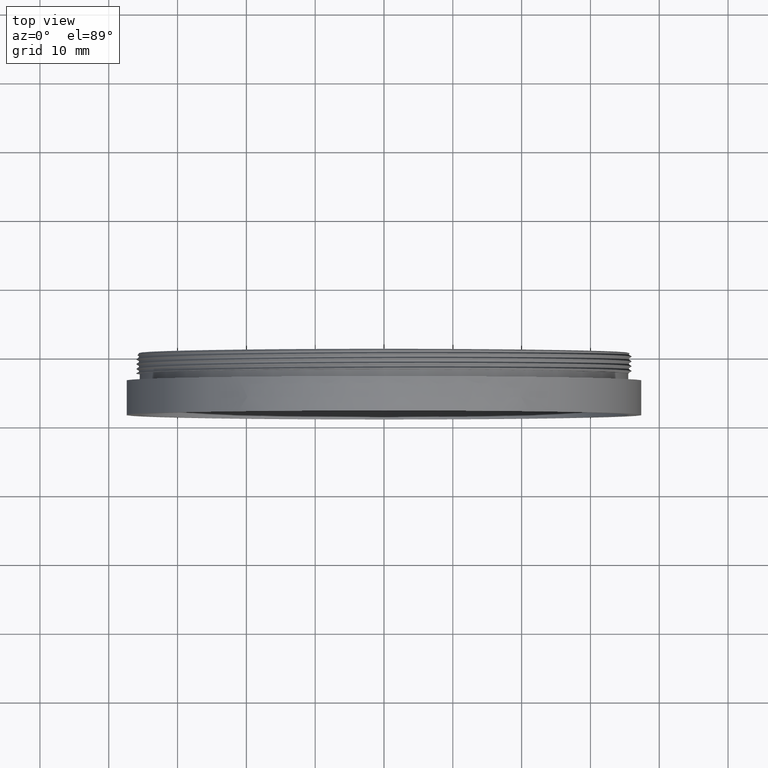
[diagram: clean part render]
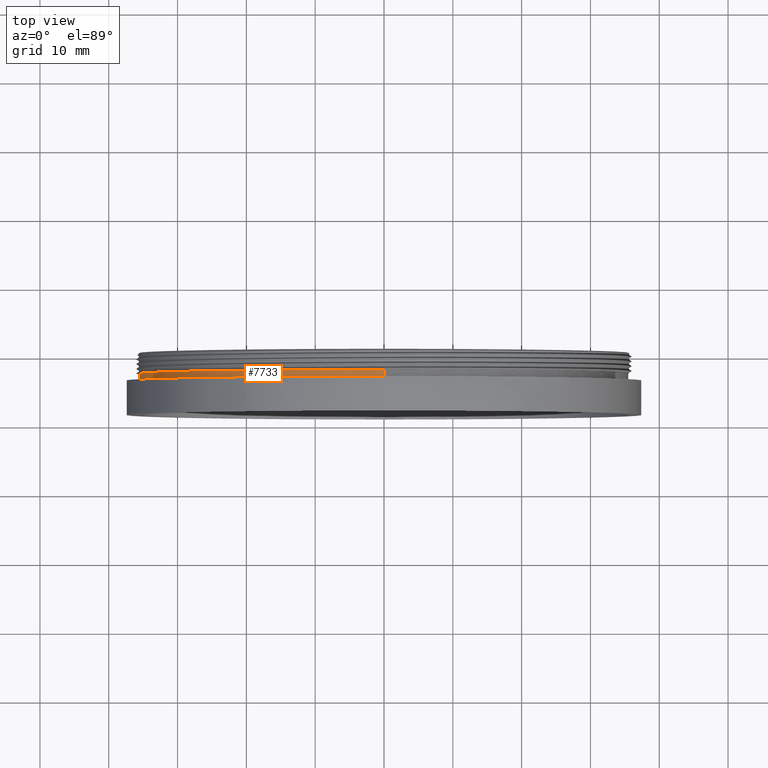
[diagram: same view with one face highlighted and labeled with its STEP entity id]
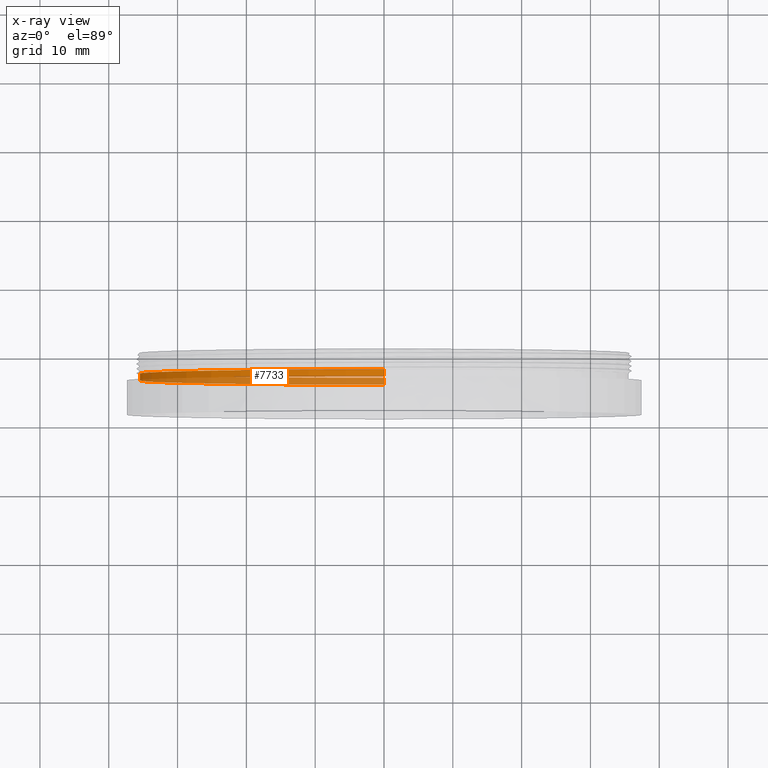
[diagram: x-ray of the same camera — body ghosted, the highlighted face saturated]
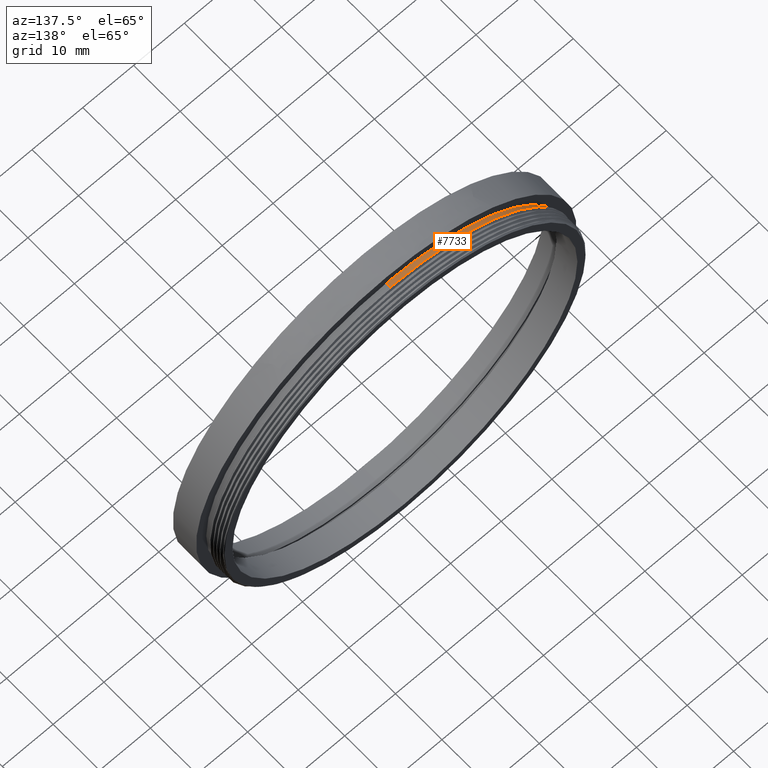
[diagram: same view with one face highlighted and labeled with its STEP entity id]
A machine part, top view. The second image highlights one B-rep face of the part: STEP entity #7733.
The next image is the same camera in x-ray: the body ghosted, the highlighted face saturated — about 47% of this face is hidden behind the body in this view.
A second angle (auxiliary view) of the same face is appended — the face is thin or edge-on in the first view.
In plain terms, the highlighted cylindrical surface (partial cylindrical patch) has radius 35.5 mm, axis along (-0, -1, -0).
Its self-contained STEP definition (entity closure, byte-faithful):
#822 = CYLINDRICAL_SURFACE ( 'NONE', #4158, 35.50000000000008527 ) ;
#908 = ORIENTED_EDGE ( 'NONE', *, *, #15355, .F. ) ;
#1348 = DIRECTION ( 'NONE',  ( 0.0000000000000000000, 0.0000000000000000000, -1.000000000000000000 ) ) ;
#1555 = AXIS2_PLACEMENT_3D ( 'NONE', #3644, #7416, #1348 ) ;
#2488 = VERTEX_POINT ( 'NONE', #14206 ) ;
#2597 = ORIENTED_EDGE ( 'NONE', *, *, #13768, .F. ) ;
#3644 = CARTESIAN_POINT ( 'NONE',  ( 0.0000000000000000000, 7.201941862066987277, 0.0000000000000000000 ) ) ;
#4158 = AXIS2_PLACEMENT_3D ( 'NONE', #4908, #10912, #6057 ) ;
#4908 = CARTESIAN_POINT ( 'NONE',  ( 0.0000000000000000000, 0.0000000000000000000, 0.0000000000000000000 ) ) ;
#4915 = LINE ( 'NONE', #5984, #6778 ) ;
#5029 = VERTEX_POINT ( 'NONE', #14134 ) ;
#5342 = VERTEX_POINT ( 'NONE', #9519 ) ;
#5613 = CARTESIAN_POINT ( 'NONE',  ( 0.0000000000000000000, 6.201941862066847833, 0.0000000000000000000 ) ) ;
#5984 = CARTESIAN_POINT ( 'NONE',  ( 4.347496136973114326E-15, 0.0000000000000000000, 35.50000000000008527 ) ) ;
#6057 = DIRECTION ( 'NONE',  ( 0.0000000000000000000, 0.0000000000000000000, -1.000000000000000000 ) ) ;
#6544 = CARTESIAN_POINT ( 'NONE',  ( 0.0000000000000000000, 0.0000000000000000000, -35.50000000000008527 ) ) ;
#6600 = EDGE_LOOP ( 'NONE', ( #908, #15117, #8676, #2597 ) ) ;
#6778 = VECTOR ( 'NONE', #13474, 1000.000000000000000 ) ;
#7342 = CIRCLE ( 'NONE', #11547, 35.50000000000008527 ) ;
#7416 = DIRECTION ( 'NONE',  ( -0.0000000000000000000, -1.000000000000000000, -0.0000000000000000000 ) ) ;
#7733 = ADVANCED_FACE ( 'NONE', ( #10995 ), #822, .T. ) ;
#7869 = VECTOR ( 'NONE', #16237, 1000.000000000000000 ) ;
#8676 = ORIENTED_EDGE ( 'NONE', *, *, #15439, .T. ) ;
#8890 = EDGE_CURVE ( 'NONE', #2488, #5029, #10724, .T. ) ;
#9330 = VERTEX_POINT ( 'NONE', #9594 ) ;
#9519 = CARTESIAN_POINT ( 'NONE',  ( 0.0000000000000000000, 6.201941862066847833, -35.50000000000008527 ) ) ;
#9594 = CARTESIAN_POINT ( 'NONE',  ( 4.347496136973114326E-15, 6.201941862066847833, 35.50000000000008527 ) ) ;
#10724 = CIRCLE ( 'NONE', #1555, 35.50000000000008527 ) ;
#10912 = DIRECTION ( 'NONE',  ( -0.0000000000000000000, -1.000000000000000000, -0.0000000000000000000 ) ) ;
#10995 = FACE_OUTER_BOUND ( 'NONE', #6600, .T. ) ;
#11547 = AXIS2_PLACEMENT_3D ( 'NONE', #5613, #15627, #14571 ) ;
#13474 = DIRECTION ( 'NONE',  ( -0.0000000000000000000, -1.000000000000000000, -0.0000000000000000000 ) ) ;
#13768 = EDGE_CURVE ( 'NONE', #9330, #5342, #7342, .T. ) ;
#14030 = LINE ( 'NONE', #6544, #7869 ) ;
#14134 = CARTESIAN_POINT ( 'NONE',  ( 0.0000000000000000000, 7.201941862066987277, -35.50000000000008527 ) ) ;
#14206 = CARTESIAN_POINT ( 'NONE',  ( 4.347496136973114326E-15, 7.201941862066987277, 35.50000000000008527 ) ) ;
#14571 = DIRECTION ( 'NONE',  ( 0.0000000000000000000, 0.0000000000000000000, -1.000000000000000000 ) ) ;
#15117 = ORIENTED_EDGE ( 'NONE', *, *, #8890, .T. ) ;
#15355 = EDGE_CURVE ( 'NONE', #2488, #9330, #4915, .T. ) ;
#15439 = EDGE_CURVE ( 'NONE', #5029, #5342, #14030, .T. ) ;
#15627 = DIRECTION ( 'NONE',  ( -0.0000000000000000000, -1.000000000000000000, -0.0000000000000000000 ) ) ;
#16237 = DIRECTION ( 'NONE',  ( -0.0000000000000000000, -1.000000000000000000, -0.0000000000000000000 ) ) ;